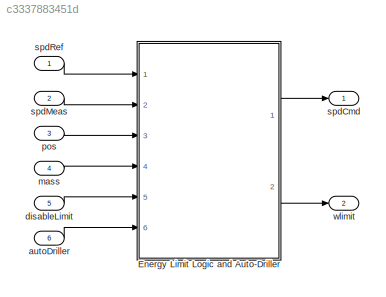
MODEL slx_c3337883451d
KIND model
CONFIG AbsTol = auto
CONFIG EnableMultiTasking = off
CONFIG FixedStep = auto
CONFIG MaxStep = auto
CONFIG MinStep = auto
CONFIG PreLoadFcn = G = 10;\nRdrum = 0.25;\nNp = 5;\nm_topdrive = 1000;\nm_drillstring = 22500;\nRpulley = Rdrum;\n\nm = m_topdrive + m_drillstring;\n\n% Top/Bottom Distance\nxtop = 48*0.3048;\nxbott = 0;\n\n% Maximum Torque/Power of Drive\nTmax = 8000*1.36;\nPmax = 1500*746;\n\n% Initial Conditions\nv0 = 0; %m/s\nx0 = 0; %m\n\n% Gravity\ng = 9.8;
CONFIG RelTol = 1e-3
CONFIG SampleTimeConstraint = Unconstrained
CONFIG Solver = FixedStepDiscrete
CONFIG SolverName = FixedStepDiscrete
CONFIG StartTime = 0.0
CONFIG StopTime = 10.0
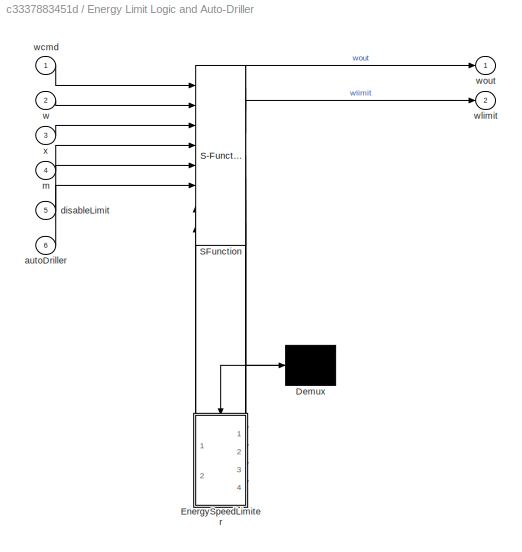
BLOCK [SubSystem] Energy Limit Logic and Auto-Driller
  ErrorFcn = Stateflow.Translate.translate
  PermitHierarchicalResolution = ExplicitOnly
  Ports = [6, 2]
  RequestExecContextInheritance = off
  SFBlockType = Chart
  TreatAsAtomicUnit = on
BLOCK [Demux] Energy Limit Logic and Auto-Driller/ Demux 
  Outputs = 1
  Ports = [1, 1]
BLOCK [S-Function] Energy Limit Logic and Auto-Driller/ SFunction 
  EnableBusSupport = on
  FunctionName = sf_sfun
  PortCounts = [8 7]
  Ports = [8, 7]
  SFcnIsStateOwnerBlock = off
  SFunctionDeploymentMode = off
  Tag = Stateflow S-Function autoDrillingLogic_errorChecking 3
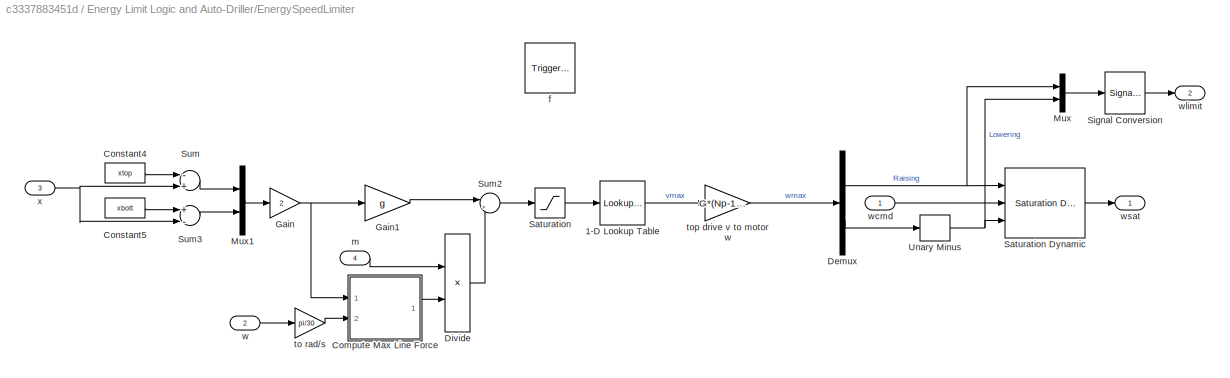
BLOCK [SubSystem] Energy Limit Logic and Auto-Driller/EnergySpeedLimiter
  Ports = [4, 2, 0, 1]
  PreDeleteFcn = Stateflow.SLINSF.SimulinkMan.removePreDeleteFcn
  RequestExecContextInheritance = off
  UndoDeleteFcn = Stateflow.SLINSF.SimulinkMan.restorePreDeleteFcn
BLOCK [Lookup_n-D] Energy Limit Logic and Auto-Driller/EnergySpeedLimiter/1-D Lookup Table
  BreakpointsForDimension1 = [0:1000]
  BreakpointsForDimension1FirstPoint = 0
  BreakpointsSpecification = Even spacing
  ExtrapMethod = Clip
  IndexSearchMethod = Evenly spaced points
  InternalRulePriority = Speed
  NumberOfTableDimensions = 1
  Ports = [1, 1]
  RemoveProtectionInput = on
  RndMeth = Simplest
  Table = sqrt([0:1000])
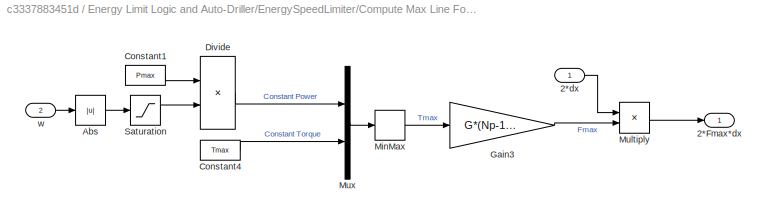
BLOCK [SubSystem] Energy Limit Logic and Auto-Driller/EnergySpeedLimiter/Compute Max Line Force
  Ports = [2, 1]
  RequestExecContextInheritance = off
BLOCK [Outport] Energy Limit Logic and Auto-Driller/EnergySpeedLimiter/Compute Max Line Force/2*Fmax*dx
  IconDisplay = Port number
BLOCK [Inport] Energy Limit Logic and Auto-Driller/EnergySpeedLimiter/Compute Max Line Force/2*dx
  IconDisplay = Port number
BLOCK [Abs] Energy Limit Logic and Auto-Driller/EnergySpeedLimiter/Compute Max Line Force/Abs
  SaturateOnIntegerOverflow = off
BLOCK [Constant] Energy Limit Logic and Auto-Driller/EnergySpeedLimiter/Compute Max Line Force/Constant1
  Value = Pmax
BLOCK [Constant] Energy Limit Logic and Auto-Driller/EnergySpeedLimiter/Compute Max Line Force/Constant4
  Value = Tmax
BLOCK [Product] Energy Limit Logic and Auto-Driller/EnergySpeedLimiter/Compute Max Line Force/Divide
  InputSameDT = off
  Inputs = */
  OutDataTypeStr = Inherit: Inherit via internal rule
  Ports = [2, 1]
  RndMeth = Floor
  SaturateOnIntegerOverflow = off
BLOCK [Gain] Energy Limit Logic and Auto-Driller/EnergySpeedLimiter/Compute Max Line Force/Gain3
  Gain = G*(Np-1)/Rdrum
  OutDataTypeStr = Inherit: Inherit via internal rule
  ParamDataTypeStr = Inherit: Inherit via internal rule
  SaturateOnIntegerOverflow = off
BLOCK [MinMax] Energy Limit Logic and Auto-Driller/EnergySpeedLimiter/Compute Max Line Force/MinMax
  InputSameDT = off
  Ports = [1, 1]
  SaturateOnIntegerOverflow = off
BLOCK [Product] Energy Limit Logic and Auto-Driller/EnergySpeedLimiter/Compute Max Line Force/Multiply
  InputSameDT = off
  OutDataTypeStr = Inherit: Inherit via internal rule
  Ports = [2, 1]
  RndMeth = Floor
  SaturateOnIntegerOverflow = off
BLOCK [Mux] Energy Limit Logic and Auto-Driller/EnergySpeedLimiter/Compute Max Line Force/Mux
  DisplayOption = bar
  Inputs = 2
  Ports = [2, 1]
BLOCK [Saturate] Energy Limit Logic and Auto-Driller/EnergySpeedLimiter/Compute Max Line Force/Saturation
  InputPortMap = u0
  LowerLimit = 0.1
  Ports = [1, 1]
  UpperLimit = 2000
BLOCK [Inport] Energy Limit Logic and Auto-Driller/EnergySpeedLimiter/Compute Max Line Force/w
  IconDisplay = Port number
  Port = 2
BLOCK [Constant] Energy Limit Logic and Auto-Driller/EnergySpeedLimiter/Constant4
  Value = xtop
BLOCK [Constant] Energy Limit Logic and Auto-Driller/EnergySpeedLimiter/Constant5
  Value = xbott
BLOCK [Demux] Energy Limit Logic and Auto-Driller/EnergySpeedLimiter/Demux
  DisplayOption = bar
  Outputs = 2
  Ports = [1, 2]
BLOCK [Product] Energy Limit Logic and Auto-Driller/EnergySpeedLimiter/Divide
  InputSameDT = off
  Inputs = /*
  OutDataTypeStr = Inherit: Inherit via internal rule
  Ports = [2, 1]
  RndMeth = Floor
  SaturateOnIntegerOverflow = off
BLOCK [Gain] Energy Limit Logic and Auto-Driller/EnergySpeedLimiter/Gain
  Gain = 2
  OutDataTypeStr = Inherit: Inherit via internal rule
  ParamDataTypeStr = Inherit: Inherit via internal rule
  SaturateOnIntegerOverflow = off
BLOCK [Gain] Energy Limit Logic and Auto-Driller/EnergySpeedLimiter/Gain1
  Gain = g
  OutDataTypeStr = Inherit: Inherit via internal rule
  ParamDataTypeStr = Inherit: Inherit via internal rule
  SaturateOnIntegerOverflow = off
BLOCK [Mux] Energy Limit Logic and Auto-Driller/EnergySpeedLimiter/Mux
  DisplayOption = bar
  Inputs = 2
  Ports = [2, 1]
BLOCK [Mux] Energy Limit Logic and Auto-Driller/EnergySpeedLimiter/Mux1
  DisplayOption = bar
  Inputs = 2
  Ports = [2, 1]
BLOCK [Saturate] Energy Limit Logic and Auto-Driller/EnergySpeedLimiter/Saturation
  InputPortMap = u0
  LowerLimit = 0
  Ports = [1, 1]
  UpperLimit = 1000
BLOCK [Reference] Energy Limit Logic and Auto-Driller/EnergySpeedLimiter/Saturation Dynamic  REF=simulink/Discontinuities/Saturation
Dynamic
  Ports = [3, 1]
  SourceBlock = simulink/Discontinuities/Saturation\nDynamic
  SourceProductBaseCode = SL
  SourceProductName = Simulink
  SourceType = Saturation Dynamic
BLOCK [SignalConversion] Energy Limit Logic and Auto-Driller/EnergySpeedLimiter/Signal Conversion
  OverrideOpt = off
BLOCK [Sum] Energy Limit Logic and Auto-Driller/EnergySpeedLimiter/Sum
  InputSameDT = off
  Inputs = -+
  OutDataTypeStr = Inherit: Inherit via internal rule
  Ports = [2, 1]
  SaturateOnIntegerOverflow = off
BLOCK [Sum] Energy Limit Logic and Auto-Driller/EnergySpeedLimiter/Sum2
  IconShape = round
  InputSameDT = off
  Inputs = |+-
  OutDataTypeStr = Inherit: Inherit via internal rule
  Ports = [2, 1]
  SaturateOnIntegerOverflow = off
BLOCK [Sum] Energy Limit Logic and Auto-Driller/EnergySpeedLimiter/Sum3
  InputSameDT = off
  Inputs = +-
  OutDataTypeStr = Inherit: Inherit via internal rule
  Ports = [2, 1]
  SaturateOnIntegerOverflow = off
BLOCK [UnaryMinus] Energy Limit Logic and Auto-Driller/EnergySpeedLimiter/Unary Minus
BLOCK [TriggerPort] Energy Limit Logic and Auto-Driller/EnergySpeedLimiter/f
  CopyFcn = Stateflow.SLINSF.SimulinkMan.removeBlockPreDeleteFcn
  Ports = []
  PreDeleteFcn = Stateflow.SLINSF.SimulinkMan.unsafePredeleteFcn
  StatesWhenEnabling = held
  TriggerType = function-call
  VariantControl = (inherit)
BLOCK [Inport] Energy Limit Logic and Auto-Driller/EnergySpeedLimiter/m
  IconDisplay = Port number
  OutDataTypeStr = double
  Port = 4
  PortDimensions = 1
  SignalType = real
  VarSizeSig = No
BLOCK [Gain] Energy Limit Logic and Auto-Driller/EnergySpeedLimiter/to rad//s
  Gain = pi/30
  OutDataTypeStr = Inherit: Inherit via internal rule
  ParamDataTypeStr = Inherit: Inherit via internal rule
  SaturateOnIntegerOverflow = off
BLOCK [Gain] Energy Limit Logic and Auto-Driller/EnergySpeedLimiter/top drive v to motor w
  Gain = G*(Np-1)/Rdrum
  OutDataTypeStr = Inherit: Inherit via internal rule
  ParamDataTypeStr = Inherit: Inherit via internal rule
  SaturateOnIntegerOverflow = off
BLOCK [Inport] Energy Limit Logic and Auto-Driller/EnergySpeedLimiter/w
  IconDisplay = Port number
  OutDataTypeStr = double
  Port = 2
  PortDimensions = 1
  SignalType = real
  VarSizeSig = No
BLOCK [Inport] Energy Limit Logic and Auto-Driller/EnergySpeedLimiter/wcmd
  IconDisplay = Port number
  OutDataTypeStr = double
  PortDimensions = 1
  SignalType = real
  VarSizeSig = No
BLOCK [Outport] Energy Limit Logic and Auto-Driller/EnergySpeedLimiter/wlimit
  IconDisplay = Port number
  Port = 2
BLOCK [Outport] Energy Limit Logic and Auto-Driller/EnergySpeedLimiter/wsat
  IconDisplay = Port number
BLOCK [Inport] Energy Limit Logic and Auto-Driller/EnergySpeedLimiter/x
  IconDisplay = Port number
  OutDataTypeStr = double
  Port = 3
  PortDimensions = 1
  SignalType = real
  VarSizeSig = No
BLOCK [Inport] Energy Limit Logic and Auto-Driller/autoDriller
  IconDisplay = Port number
  Port = 6
BLOCK [Inport] Energy Limit Logic and Auto-Driller/disableLimit
  IconDisplay = Port number
  Port = 5
BLOCK [Inport] Energy Limit Logic and Auto-Driller/m
  IconDisplay = Port number
  Port = 4
BLOCK [Inport] Energy Limit Logic and Auto-Driller/w
  IconDisplay = Port number
  Port = 2
BLOCK [Inport] Energy Limit Logic and Auto-Driller/wcmd
  IconDisplay = Port number
BLOCK [Outport] Energy Limit Logic and Auto-Driller/wlimit
  IconDisplay = Port number
  Port = 2
BLOCK [Outport] Energy Limit Logic and Auto-Driller/wout
  IconDisplay = Port number
BLOCK [Inport] Energy Limit Logic and Auto-Driller/x
  IconDisplay = Port number
  Port = 3
BLOCK [Inport] autoDriller
  IconDisplay = Port number
  OutDataTypeStr = boolean
  Port = 6
BLOCK [Inport] disableLimit
  IconDisplay = Port number
  OutDataTypeStr = boolean
  Port = 5
BLOCK [Inport] mass
  IconDisplay = Port number
  OutMax = 1e12
  OutMin = 0
  Port = 4
BLOCK [Inport] pos
  IconDisplay = Port number
  OutMax = 100
  OutMin = -5
  Port = 3
BLOCK [Outport] spdCmd
  IconDisplay = Port number
BLOCK [Inport] spdMeas
  IconDisplay = Port number
  OutMax = 2000
  OutMin = -2000
  Port = 2
BLOCK [Inport] spdRef
  IconDisplay = Port number
  OutMax = 2000
  OutMin = -2000
BLOCK [Outport] wlimit
  IconDisplay = Port number
  Port = 2
LINE Energy Limit Logic and Auto-Driller:1 -> spdCmd:1
LINE Energy Limit Logic and Auto-Driller:2 -> wlimit:1
LINE autoDriller:1 -> Energy Limit Logic and Auto-Driller:6
LINE disableLimit:1 -> Energy Limit Logic and Auto-Driller:5
LINE mass:1 -> Energy Limit Logic and Auto-Driller:4
LINE pos:1 -> Energy Limit Logic and Auto-Driller:3
LINE spdMeas:1 -> Energy Limit Logic and Auto-Driller:2
LINE spdRef:1 -> Energy Limit Logic and Auto-Driller:1
CHART Energy Limit Logic
and Auto-Driller states=9 transitions=11
  STATE_LABEL 'Manual\n[wout,wlimit] = EnergySpeedLimiter(wcmd,w,x,m);'
  STATE_LABEL 'AutoDriller'
  STATE_LABEL 'InitalizeAuto'
  STATE_LABEL 'RaiseHoist\n[wout,wlimit] = EnergySpeedLimiter(1000,w,x,m);\n'
  STATE_LABEL 'AddPipeAndMake\nwout = 0;'
  STATE_LABEL 'LowerAndDrill\n[wout,wlimit] = EnergySpeedLimiter(-1000,w,x,m);'
  STATE_LABEL 'BreakString\nwout = 0;'
  STATE_LABEL '[after(2,sec)]'
  STATE_LABEL '[after(5,sec)]'
  STATE_LABEL '[x >= xtop]'
  STATE_LABEL '[after(5,sec)]'
  STATE_LABEL '[x <= 0.01]'
  STATE_LABEL 'InitalizeAuto'
  STATE_LABEL 'RaiseHoist\n[wout,wlimit] = EnergySpeedLimiter(1000,w,x,m);\n'
  STATE_LABEL 'AddPipeAndMake\nwout = 0;'
  STATE_LABEL 'LowerAndDrill\n[wout,wlimit] = EnergySpeedLimiter(-1000,w,x,m);'
  STATE_LABEL 'BreakString\nwout = 0;'
  STATE_LABEL 'DisableLimits\nwout = wcmd;\nwlimit = [2000;-2000];'
  STATE_LABEL '[wsat,wlimit] = EnergySpeedLimiter(wcmd,w,x,m)'
